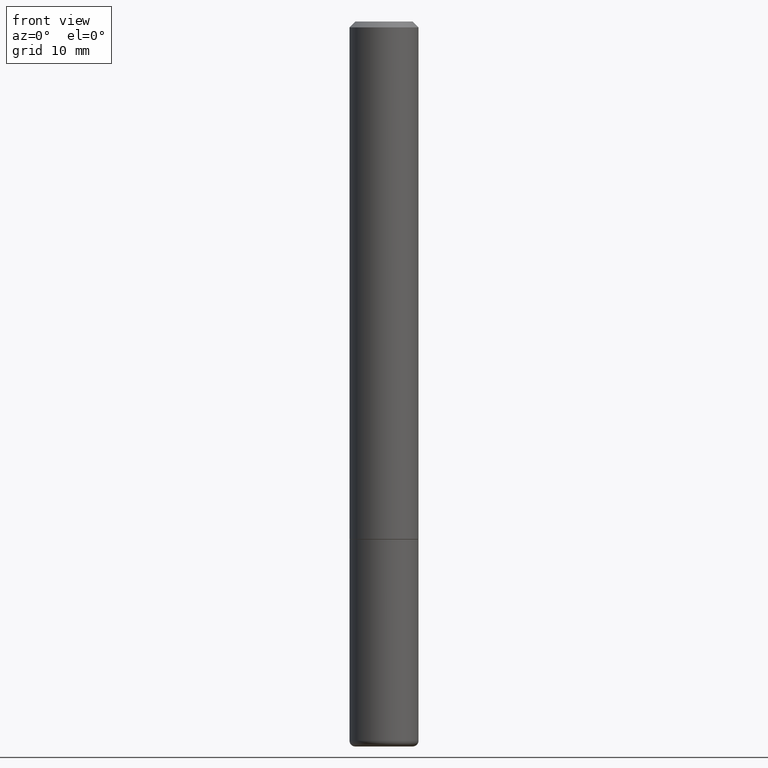
[diagram: clean part render]
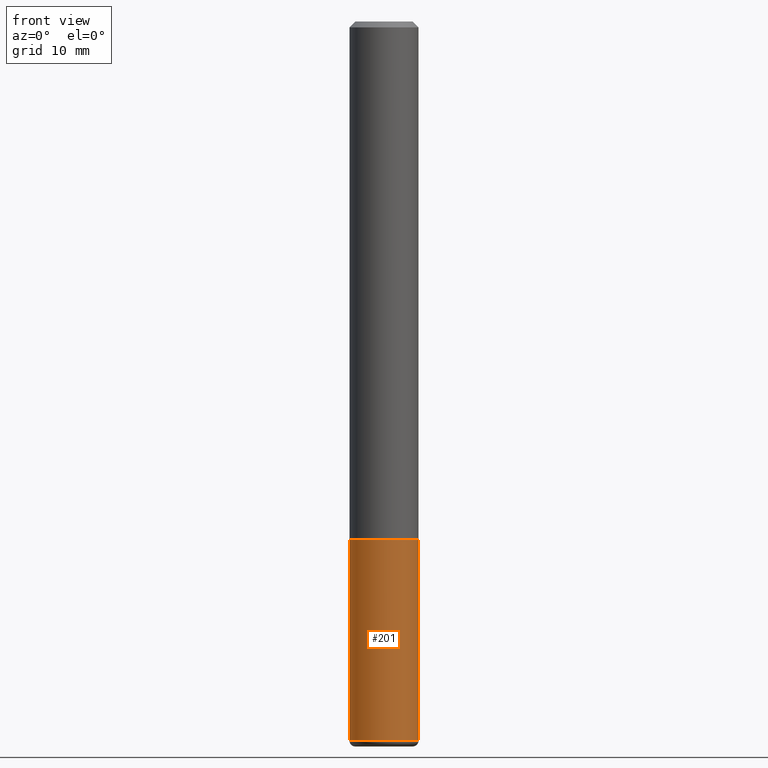
[diagram: same view with one face highlighted and labeled with its STEP entity id]
A machine part, front view. The second image highlights one B-rep face of the part: STEP entity #201.
In plain terms, the highlighted cylindrical surface (edge-blend (fillet) strip) has radius 2.9997 mm, axis along (-0, 0, 1).
Its self-contained STEP definition (entity closure, byte-faithful):
#13 = VERTEX_POINT ( 'NONE', #379 ) ;
#30 = VERTEX_POINT ( 'NONE', #258 ) ;
#32 = CARTESIAN_POINT ( 'NONE',  ( 0.1180999999999999966, -7.010196232129265043E-15, -1.771600000000000286 ) ) ;
#33 = DIRECTION ( 'NONE',  ( 1.000000000000000000, -6.982962677686265133E-15, 0.000000000000000000 ) ) ;
#40 = VERTEX_POINT ( 'NONE', #32 ) ;
#76 = EDGE_CURVE ( 'NONE', #261, #13, #391, .T. ) ;
#99 = DIRECTION ( 'NONE',  ( -2.445468806185136597E-29, 3.491481338843145583E-15, 1.000000000000000000 ) ) ;
#102 = CARTESIAN_POINT ( 'NONE',  ( 0.000000000000000000, 0.000000000000000000, 0.000000000000000000 ) ) ;
#107 = AXIS2_PLACEMENT_3D ( 'NONE', #102, #251, #360 ) ;
#112 = DIRECTION ( 'NONE',  ( 1.000000000000000000, -6.982962677686273021E-15, 0.000000000000000000 ) ) ;
#126 = VECTOR ( 'NONE', #329, 39.37007874015748143 ) ;
#127 = LINE ( 'NONE', #132, #126 ) ;
#128 = CYLINDRICAL_SURFACE ( 'NONE', #107, 0.1180999999999999966 ) ;
#132 = CARTESIAN_POINT ( 'NONE',  ( -0.1180999999999999966, 8.391509709326782957E-16, -5.809262341591043784E-30 ) ) ;
#140 = CIRCLE ( 'NONE', #241, 0.1180999999999999966 ) ;
#148 = EDGE_CURVE ( 'NONE', #13, #40, #381, .T. ) ;
#150 = DIRECTION ( 'NONE',  ( -2.445468806185136877E-29, 3.491481338843145188E-15, 1.000000000000000000 ) ) ;
#177 = VECTOR ( 'NONE', #150, 39.37007874015748143 ) ;
#201 = ADVANCED_FACE ( 'NONE', ( #255 ), #128, .T. ) ;
#226 = ORIENTED_EDGE ( 'NONE', *, *, #276, .F. ) ;
#231 = EDGE_CURVE ( 'NONE', #30, #40, #140, .T. ) ;
#241 = AXIS2_PLACEMENT_3D ( 'NONE', #326, #99, #33 ) ;
#251 = DIRECTION ( 'NONE',  ( -2.445468806185136597E-29, 3.491481338843145583E-15, 1.000000000000000000 ) ) ;
#255 = FACE_OUTER_BOUND ( 'NONE', #328, .T. ) ;
#258 = CARTESIAN_POINT ( 'NONE',  ( -0.1180999999999999966, -6.549172690193302663E-15, -1.771600000000000286 ) ) ;
#261 = VERTEX_POINT ( 'NONE', #353 ) ;
#269 = CARTESIAN_POINT ( 'NONE',  ( 6.017320544499148018E-29, -8.591138982357444151E-15, -2.460600000000000342 ) ) ;
#276 = EDGE_CURVE ( 'NONE', #261, #30, #127, .T. ) ;
#326 = CARTESIAN_POINT ( 'NONE',  ( 4.332392537037588763E-29, -6.185508339894517569E-15, -1.771600000000000286 ) ) ;
#328 = EDGE_LOOP ( 'NONE', ( #226, #393, #334, #384 ) ) ;
#329 = DIRECTION ( 'NONE',  ( -2.445468806185136877E-29, 3.491481338843145188E-15, 1.000000000000000000 ) ) ;
#334 = ORIENTED_EDGE ( 'NONE', *, *, #148, .T. ) ;
#350 = CARTESIAN_POINT ( 'NONE',  ( 0.1180999999999999966, -8.246878922347480654E-16, 5.758764772215000440E-30 ) ) ;
#353 = CARTESIAN_POINT ( 'NONE',  ( -0.1181000000000000105, -7.751988011424766742E-15, -2.460600000000000342 ) ) ;
#360 = DIRECTION ( 'NONE',  ( 1.000000000000000000, -6.982962677686266711E-15, 4.876176775795936353E-29 ) ) ;
#379 = CARTESIAN_POINT ( 'NONE',  ( 0.1181000000000000105, -9.415826874592192413E-15, -2.460600000000000342 ) ) ;
#381 = LINE ( 'NONE', #350, #177 ) ;
#384 = ORIENTED_EDGE ( 'NONE', *, *, #231, .F. ) ;
#391 = CIRCLE ( 'NONE', #413, 0.1180999999999999966 ) ;
#393 = ORIENTED_EDGE ( 'NONE', *, *, #76, .T. ) ;
#405 = DIRECTION ( 'NONE',  ( -2.445468806185136597E-29, 3.491481338843145583E-15, 1.000000000000000000 ) ) ;
#413 = AXIS2_PLACEMENT_3D ( 'NONE', #269, #405, #112 ) ;